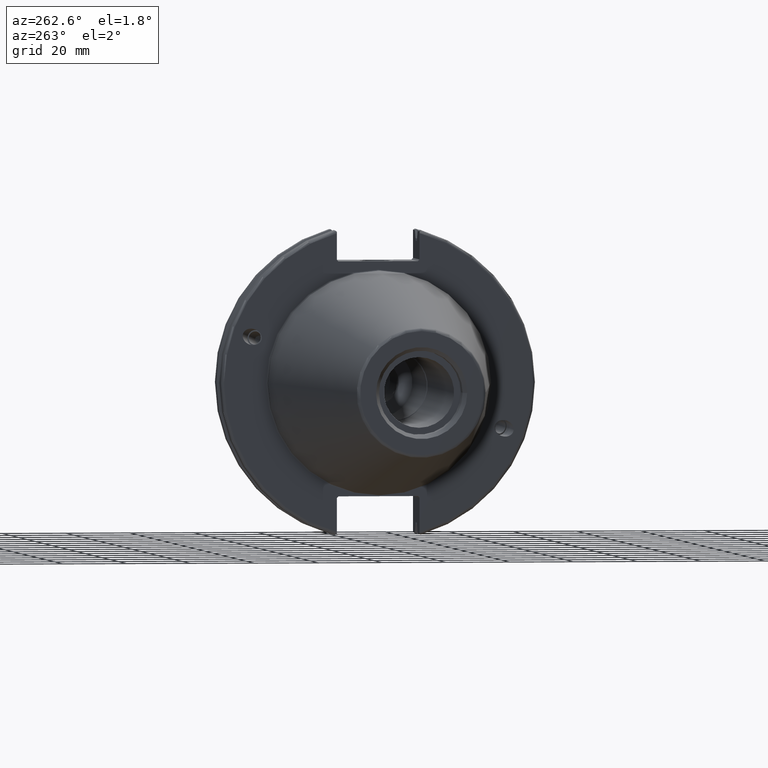
[diagram: clean part render]
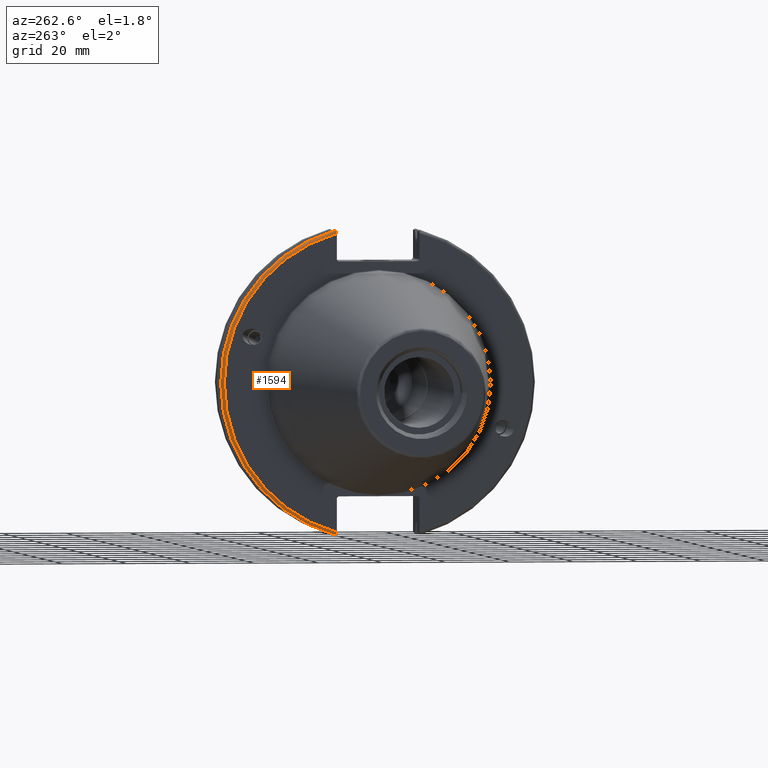
[diagram: same view with one face highlighted and labeled with its STEP entity id]
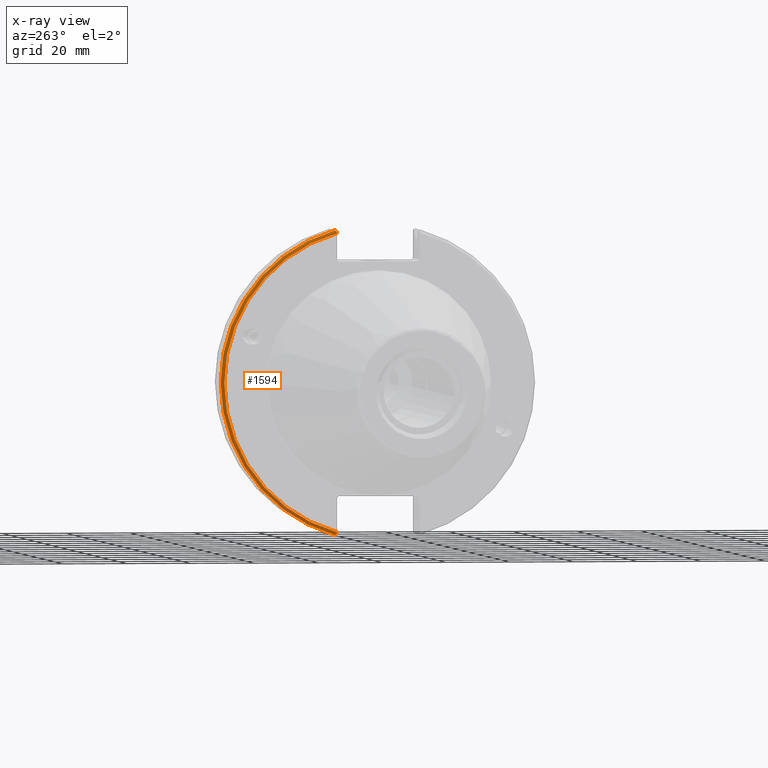
[diagram: x-ray of the same camera — body ghosted, the highlighted face saturated]
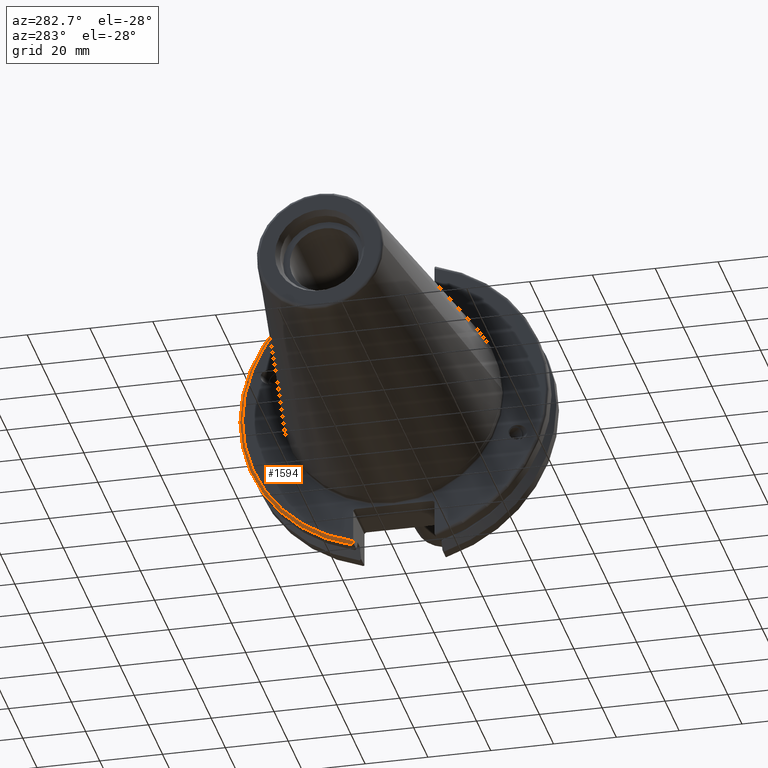
[diagram: same view with one face highlighted and labeled with its STEP entity id]
A machine part, auxiliary view. The second image highlights one B-rep face of the part: STEP entity #1594.
The next image is the same camera in x-ray: the body ghosted, the highlighted face saturated — about 0% of this face is hidden behind the body in this view.
A second angle (auxiliary view) of the same face is appended — the face is thin or edge-on in the first view.
In plain terms, the highlighted toroidal blend (fillet) surface has major radius 48.2125 mm and minor (blend) radius 1 mm.
Its self-contained STEP definition (entity closure, byte-faithful):
#75=TOROIDAL_SURFACE('',#1775,48.2125,1.);
#125=B_SPLINE_CURVE_WITH_KNOTS('',3,(#3000,#3001,#3002,#3003,#3004,#3005),
 .UNSPECIFIED.,.F.,.F.,(4,2,4),(0.0976892167532858,0.112000071948292,0.150881870548587),
 .UNSPECIFIED.);
#134=B_SPLINE_CURVE_WITH_KNOTS('',3,(#3124,#3125,#3126,#3127,#3128,#3129,
#3130,#3131),.UNSPECIFIED.,.F.,.F.,(4,2,2,4),(-0.104075769062722,-0.0730268503455479,
-0.0343639873656265,0.),.UNSPECIFIED.);
#135=B_SPLINE_CURVE_WITH_KNOTS('',3,(#3134,#3135,#3136,#3137,#3138,#3139,
#3140,#3141),.UNSPECIFIED.,.F.,.F.,(4,2,2,4),(0.,0.0343639873656266,0.0730268503455482,
0.104075769062722),.UNSPECIFIED.);
#136=B_SPLINE_CURVE_WITH_KNOTS('',3,(#3142,#3143,#3144,#3145,#3146,#3147),
 .UNSPECIFIED.,.F.,.F.,(4,2,4),(0.452859340315923,0.491741138916218,0.506051994111224),
 .UNSPECIFIED.);
#230=FACE_OUTER_BOUND('',#341,.T.);
#341=EDGE_LOOP('',(#1371,#1372,#1373,#1374,#1375,#1376));
#629=CIRCLE('',#1758,48.2125);
#635=CIRCLE('',#1776,49.2125);
#764=VERTEX_POINT('',#2943);
#765=VERTEX_POINT('',#2945);
#775=VERTEX_POINT('',#2999);
#795=VERTEX_POINT('',#3122);
#796=VERTEX_POINT('',#3123);
#797=VERTEX_POINT('',#3132);
#957=EDGE_CURVE('',#765,#764,#629,.T.);
#973=EDGE_CURVE('',#775,#765,#125,.T.);
#1005=EDGE_CURVE('',#795,#796,#134,.T.);
#1006=EDGE_CURVE('',#796,#797,#635,.T.);
#1007=EDGE_CURVE('',#797,#775,#135,.T.);
#1008=EDGE_CURVE('',#764,#795,#136,.T.);
#1371=ORIENTED_EDGE('',*,*,#1005,.T.);
#1372=ORIENTED_EDGE('',*,*,#1006,.T.);
#1373=ORIENTED_EDGE('',*,*,#1007,.T.);
#1374=ORIENTED_EDGE('',*,*,#973,.T.);
#1375=ORIENTED_EDGE('',*,*,#957,.T.);
#1376=ORIENTED_EDGE('',*,*,#1008,.T.);
#1594=ADVANCED_FACE('',(#230),#75,.T.);
#1758=AXIS2_PLACEMENT_3D('',#2946,#2100,#2101);
#1775=AXIS2_PLACEMENT_3D('',#3121,#2158,#2159);
#1776=AXIS2_PLACEMENT_3D('',#3133,#2160,#2161);
#2100=DIRECTION('center_axis',(1.,0.,0.));
#2101=DIRECTION('ref_axis',(0.,1.,-6.12323399573677E-17));
#2158=DIRECTION('center_axis',(1.,0.,0.));
#2159=DIRECTION('ref_axis',(0.,0.,-1.));
#2160=DIRECTION('center_axis',(-1.,0.,0.));
#2161=DIRECTION('ref_axis',(0.,1.,-6.12323399573677E-17));
#2943=CARTESIAN_POINT('',(3.175,12.95,46.4407434937254));
#2945=CARTESIAN_POINT('',(3.175,12.95,-46.4407434937254));
#2946=CARTESIAN_POINT('Origin',(3.175,0.,0.));
#2999=CARTESIAN_POINT('',(3.31949794294344,12.95,-46.9780755322918));
#3000=CARTESIAN_POINT('Ctrl Pts',(3.31949794294344,12.95,-46.9780755322918));
#3001=CARTESIAN_POINT('Ctrl Pts',(3.29341556483839,12.95,-46.9333752207329));
#3002=CARTESIAN_POINT('Ctrl Pts',(3.27115672912336,12.95,-46.887363294568));
#3003=CARTESIAN_POINT('Ctrl Pts',(3.20453530071253,12.95,-46.7230464903732));
#3004=CARTESIAN_POINT('Ctrl Pts',(3.175,12.95,-46.5703494890597));
#3005=CARTESIAN_POINT('Ctrl Pts',(3.175,12.95,-46.4407434937254));
#3121=CARTESIAN_POINT('Origin',(4.175,0.,0.));
#3122=CARTESIAN_POINT('',(3.31949794294344,12.95,46.9780755322918));
#3123=CARTESIAN_POINT('',(4.175,13.4317035994433,47.3440544806494));
#3124=CARTESIAN_POINT('Ctrl Pts',(3.31949794294344,12.95,46.9780755322918));
#3125=CARTESIAN_POINT('Ctrl Pts',(3.36785032278754,13.0300321736484,47.0388807469102));
#3126=CARTESIAN_POINT('Ctrl Pts',(3.43235971798504,13.1083611826073,47.0983919657547));
#3127=CARTESIAN_POINT('Ctrl Pts',(3.58507512107923,13.2478194810695,47.2043467509586));
#3128=CARTESIAN_POINT('Ctrl Pts',(3.70638116490965,13.3242014686233,47.2623787015413));
#3129=CARTESIAN_POINT('Ctrl Pts',(3.92661103245834,13.4067722493645,47.3251126473446));
#3130=CARTESIAN_POINT('Ctrl Pts',(4.06045337544791,13.4317035994433,47.3440544806494));
#3131=CARTESIAN_POINT('Ctrl Pts',(4.175,13.4317035994433,47.3440544806494));
#3132=CARTESIAN_POINT('',(4.175,13.4317035994433,-47.3440544806494));
#3133=CARTESIAN_POINT('Origin',(4.175,0.,0.));
#3134=CARTESIAN_POINT('Ctrl Pts',(4.175,13.4317035994433,-47.3440544806494));
#3135=CARTESIAN_POINT('Ctrl Pts',(4.06045337544791,13.4317035994433,-47.3440544806494));
#3136=CARTESIAN_POINT('Ctrl Pts',(3.92661103245834,13.4067722493645,-47.3251126473446));
#3137=CARTESIAN_POINT('Ctrl Pts',(3.70638116490964,13.3242014686232,-47.2623787015413));
#3138=CARTESIAN_POINT('Ctrl Pts',(3.58507512107923,13.2478194810695,-47.2043467509586));
#3139=CARTESIAN_POINT('Ctrl Pts',(3.43235971798504,13.1083611826073,-47.0983919657547));
#3140=CARTESIAN_POINT('Ctrl Pts',(3.36785032278754,13.0300321736484,-47.0388807469102));
#3141=CARTESIAN_POINT('Ctrl Pts',(3.31949794294344,12.95,-46.9780755322918));
#3142=CARTESIAN_POINT('Ctrl Pts',(3.175,12.95,46.4407434937254));
#3143=CARTESIAN_POINT('Ctrl Pts',(3.175,12.95,46.5703494890597));
#3144=CARTESIAN_POINT('Ctrl Pts',(3.20453530071253,12.95,46.7230464903732));
#3145=CARTESIAN_POINT('Ctrl Pts',(3.27115672912336,12.95,46.887363294568));
#3146=CARTESIAN_POINT('Ctrl Pts',(3.29341556483839,12.95,46.9333752207329));
#3147=CARTESIAN_POINT('Ctrl Pts',(3.31949794294344,12.95,46.9780755322918));